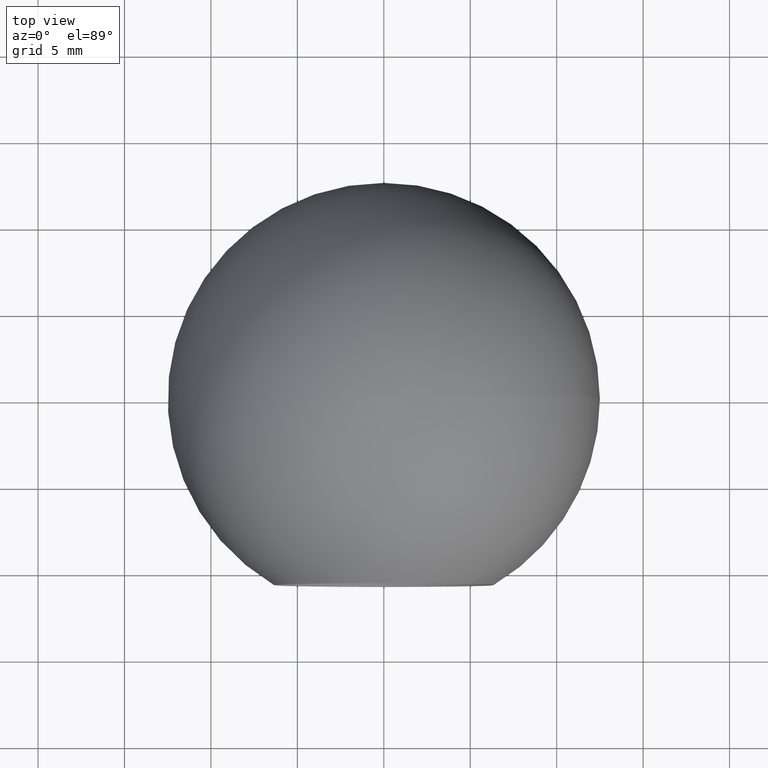
[diagram: clean part render]
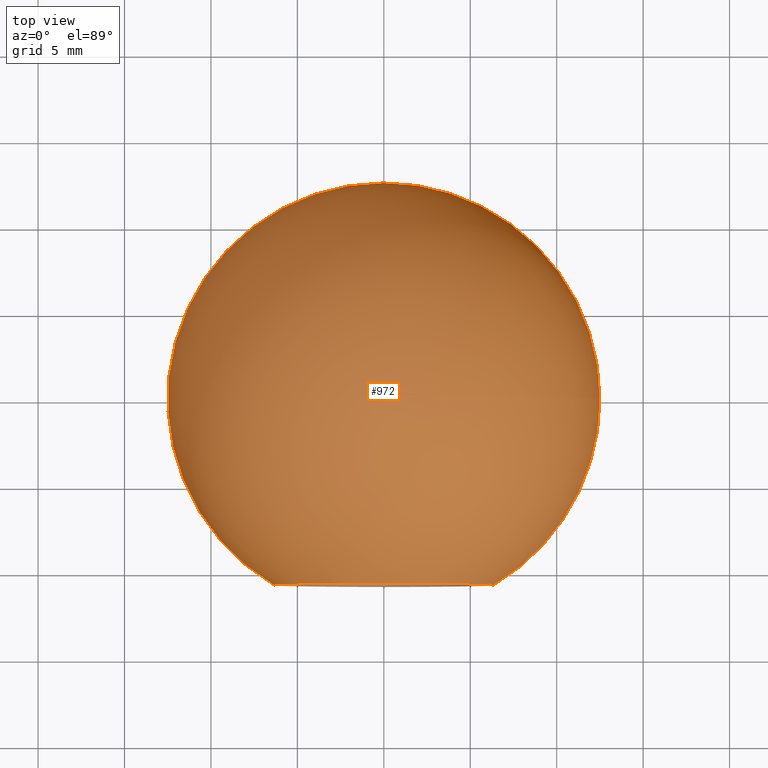
[diagram: same view with one face highlighted and labeled with its STEP entity id]
A machine part, top view. The second image highlights one B-rep face of the part: STEP entity #972.
In plain terms, the highlighted spherical surface has radius 12.5 mm.
Its self-contained STEP definition (entity closure, byte-faithful):
#384 = CIRCLE ( 'NONE', #9621, 12.50000000000000000 ) ;
#460 = AXIS2_PLACEMENT_3D ( 'NONE', #12244, #5479, #8364 ) ;
#484 = VERTEX_POINT ( 'NONE', #11404 ) ;
#562 = FACE_OUTER_BOUND ( 'NONE', #6505, .T. ) ;
#972 = ADVANCED_FACE ( 'NONE', ( #562 ), #5655, .T. ) ;
#1412 = EDGE_CURVE ( 'NONE', #484, #12081, #7463, .T. ) ;
#3099 = VERTEX_POINT ( 'NONE', #9069 ) ;
#3409 = EDGE_CURVE ( 'NONE', #3099, #12081, #384, .T. ) ;
#3441 = DIRECTION ( 'NONE',  ( -0.0000000000000000000, 0.0000000000000000000, 1.000000000000000000 ) ) ;
#3628 = DIRECTION ( 'NONE',  ( 0.0000000000000000000, 0.0000000000000000000, -1.000000000000000000 ) ) ;
#3856 = DIRECTION ( 'NONE',  ( 1.000000000000000000, 0.0000000000000000000, -1.224646799147353200E-016 ) ) ;
#5475 = ORIENTED_EDGE ( 'NONE', *, *, #3409, .T. ) ;
#5479 = DIRECTION ( 'NONE',  ( -3.795949471969979100E-019, -1.000000000000000000, -0.0000000000000000000 ) ) ;
#5655 = SPHERICAL_SURFACE ( 'NONE', #11477, 12.50000000000000000 ) ;
#5808 = ORIENTED_EDGE ( 'NONE', *, *, #10096, .F. ) ;
#5889 = CARTESIAN_POINT ( 'NONE',  ( 0.0000000000000000000, 0.0000000000000000000, 0.0000000000000000000 ) ) ;
#6357 = DIRECTION ( 'NONE',  ( 1.000000000000000000, -3.795949471969979500E-019, 0.0000000000000000000 ) ) ;
#6505 = EDGE_LOOP ( 'NONE', ( #5808, #5475, #12025 ) ) ;
#7463 = CIRCLE ( 'NONE', #460, 6.350000000000000500 ) ;
#8364 = DIRECTION ( 'NONE',  ( 1.000000000000000000, 0.0000000000000000000, 0.0000000000000000000 ) ) ;
#8385 = DIRECTION ( 'NONE',  ( -1.000000000000000000, 0.0000000000000000000, 0.0000000000000000000 ) ) ;
#8679 = CARTESIAN_POINT ( 'NONE',  ( -6.350000000000000500, -10.76696336020514100, 7.776507174585693100E-016 ) ) ;
#9069 = CARTESIAN_POINT ( 'NONE',  ( 7.701491863070581600E-016, 12.50000000000000000, 0.0000000000000000000 ) ) ;
#9621 = AXIS2_PLACEMENT_3D ( 'NONE', #5889, #11532, #3856 ) ;
#10096 = EDGE_CURVE ( 'NONE', #3099, #484, #10667, .T. ) ;
#10667 = CIRCLE ( 'NONE', #10691, 12.50000000000000000 ) ;
#10691 = AXIS2_PLACEMENT_3D ( 'NONE', #12192, #3628, #8385 ) ;
#11195 = CARTESIAN_POINT ( 'NONE',  ( 0.0000000000000000000, 0.0000000000000000000, 0.0000000000000000000 ) ) ;
#11404 = CARTESIAN_POINT ( 'NONE',  ( 6.350000000000000500, -10.76696336020514100, 0.0000000000000000000 ) ) ;
#11477 = AXIS2_PLACEMENT_3D ( 'NONE', #11195, #3441, #6357 ) ;
#11532 = DIRECTION ( 'NONE',  ( 1.224646799147353200E-016, -4.648697370573120600E-035, 1.000000000000000000 ) ) ;
#12025 = ORIENTED_EDGE ( 'NONE', *, *, #1412, .F. ) ;
#12081 = VERTEX_POINT ( 'NONE', #8679 ) ;
#12192 = CARTESIAN_POINT ( 'NONE',  ( 0.0000000000000000000, 0.0000000000000000000, 0.0000000000000000000 ) ) ;
#12244 = CARTESIAN_POINT ( 'NONE',  ( -8.832021728151556100E-018, -10.76696336020514100, 0.0000000000000000000 ) ) ;